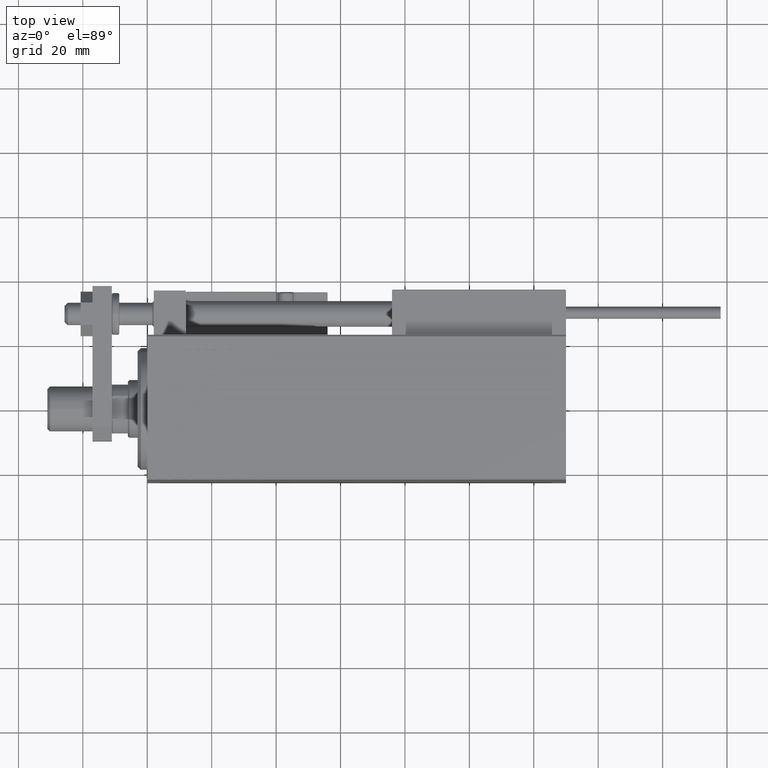
[diagram: clean part render]
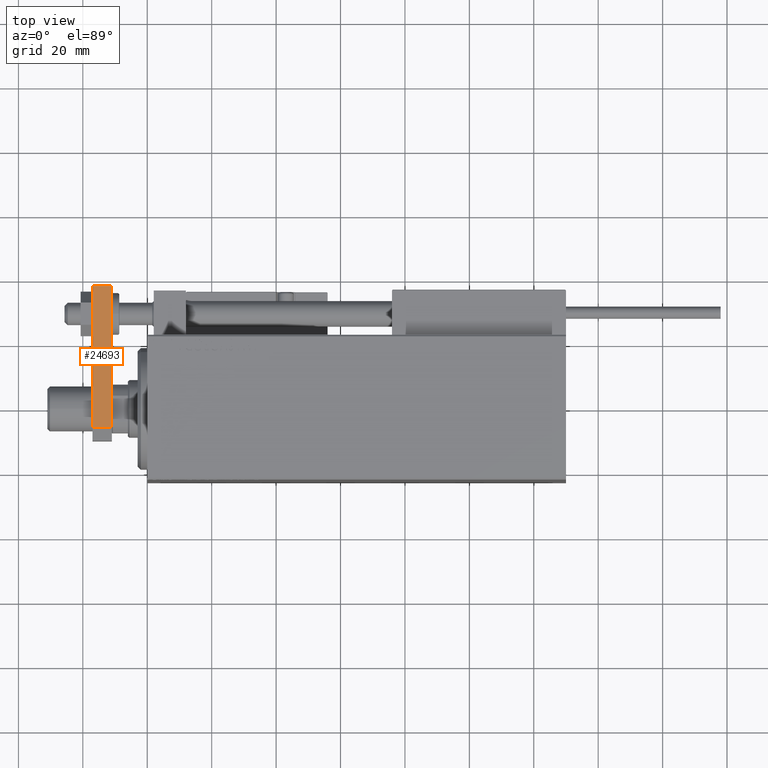
[diagram: same view with one face highlighted and labeled with its STEP entity id]
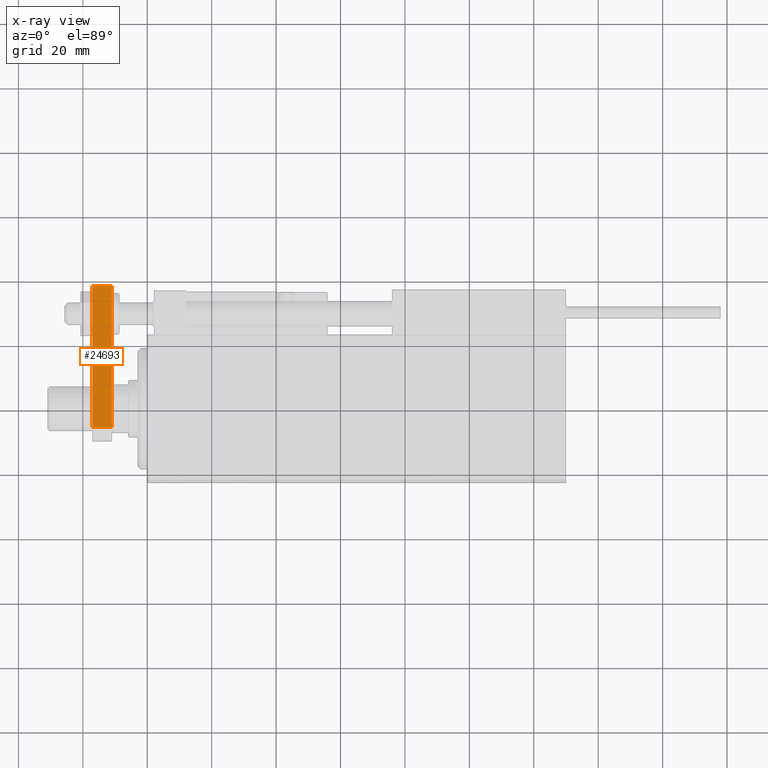
[diagram: x-ray of the same camera — body ghosted, the highlighted face saturated]
A machine part, top view. The second image highlights one B-rep face of the part: STEP entity #24693.
The next image is the same camera in x-ray: the body ghosted, the highlighted face saturated — about 0% of this face is hidden behind the body in this view.
In plain terms, the highlighted planar face has unit normal (-0, -0, -1).
Its self-contained STEP definition (entity closure, byte-faithful):
#1107 = VECTOR ( 'NONE', #17341, 1000.000000000000000 ) ;
#1156 = LINE ( 'NONE', #21184, #1107 ) ;
#2129 = ORIENTED_EDGE ( 'NONE', *, *, #43215, .F. ) ;
#3012 = CARTESIAN_POINT ( 'NONE',  ( 10.00000000000000178, 48.00000000000000000, 6.000000000000000000 ) ) ;
#5155 = CARTESIAN_POINT ( 'NONE',  ( 10.00000000000000533, 4.239999999999986890, 6.000000000000000000 ) ) ;
#8727 = CARTESIAN_POINT ( 'NONE',  ( 10.00000000000000533, 4.239999999999986890, 6.000000000000000000 ) ) ;
#8788 = VECTOR ( 'NONE', #37518, 1000.000000000000000 ) ;
#9589 = VERTEX_POINT ( 'NONE', #5155 ) ;
#10085 = CARTESIAN_POINT ( 'NONE',  ( 10.00000000000000533, 4.239999999999986890, 0.000000000000000000 ) ) ;
#11792 = CARTESIAN_POINT ( 'NONE',  ( 10.00000000000000533, 0.000000000000000000, 0.000000000000000000 ) ) ;
#12742 = CARTESIAN_POINT ( 'NONE',  ( 10.00000000000000178, 48.00000000000000000, 0.000000000000000000 ) ) ;
#15643 = LINE ( 'NONE', #11792, #20907 ) ;
#15669 = DIRECTION ( 'NONE',  ( 0.000000000000000000, 0.000000000000000000, -1.000000000000000000 ) ) ;
#15971 = DIRECTION ( 'NONE',  ( 7.228014483236695816E-17, -1.000000000000000000, 0.000000000000000000 ) ) ;
#16194 = VECTOR ( 'NONE', #15669, 1000.000000000000000 ) ;
#17341 = DIRECTION ( 'NONE',  ( -0.000000000000000000, -0.000000000000000000, -1.000000000000000000 ) ) ;
#18430 = EDGE_CURVE ( 'NONE', #9589, #39534, #47470, .T. ) ;
#20907 = VECTOR ( 'NONE', #31297, 1000.000000000000000 ) ;
#21184 = CARTESIAN_POINT ( 'NONE',  ( 10.00000000000000178, 48.00000000000000000, 6.000000000000000000 ) ) ;
#21870 = LINE ( 'NONE', #50032, #8788 ) ;
#22500 = VERTEX_POINT ( 'NONE', #3012 ) ;
#23432 = CARTESIAN_POINT ( 'NONE',  ( 10.00000000000000533, 0.000000000000000000, 6.000000000000000000 ) ) ;
#24693 = ADVANCED_FACE ( 'NONE', ( #31118 ), #46754, .F. ) ;
#24935 = EDGE_CURVE ( 'NONE', #9589, #22500, #21870, .T. ) ;
#25230 = AXIS2_PLACEMENT_3D ( 'NONE', #23432, #39074, #15971 ) ;
#31118 = FACE_OUTER_BOUND ( 'NONE', #49770, .T. ) ;
#31297 = DIRECTION ( 'NONE',  ( -7.228014483236695816E-17, 1.000000000000000000, 0.000000000000000000 ) ) ;
#33078 = VERTEX_POINT ( 'NONE', #12742 ) ;
#37518 = DIRECTION ( 'NONE',  ( -7.228014483236695816E-17, 1.000000000000000000, 0.000000000000000000 ) ) ;
#39074 = DIRECTION ( 'NONE',  ( -1.000000000000000000, -7.228014483236695816E-17, 0.000000000000000000 ) ) ;
#39367 = ORIENTED_EDGE ( 'NONE', *, *, #46390, .T. ) ;
#39534 = VERTEX_POINT ( 'NONE', #10085 ) ;
#43215 = EDGE_CURVE ( 'NONE', #22500, #33078, #1156, .T. ) ;
#43679 = ORIENTED_EDGE ( 'NONE', *, *, #18430, .T. ) ;
#46390 = EDGE_CURVE ( 'NONE', #39534, #33078, #15643, .T. ) ;
#46754 = PLANE ( 'NONE',  #25230 ) ;
#47470 = LINE ( 'NONE', #8727, #16194 ) ;
#48770 = ORIENTED_EDGE ( 'NONE', *, *, #24935, .F. ) ;
#49770 = EDGE_LOOP ( 'NONE', ( #48770, #43679, #39367, #2129 ) ) ;
#50032 = CARTESIAN_POINT ( 'NONE',  ( 10.00000000000000533, 0.000000000000000000, 6.000000000000000000 ) ) ;